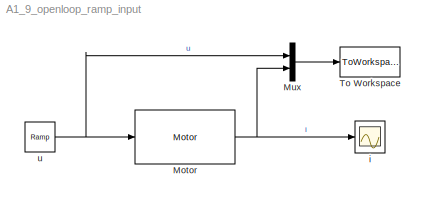
MODEL A1_9_openloop_ramp_input
KIND model
BLOCK [Reference] Motor  REF=DCmotor_library/Motor
  Ports = [1, 1]
  SID = 1
  SourceBlock = DCmotor_library/Motor
  motoridinput = 1
  name_signal = Current
  ts = 10
BLOCK [Mux] Mux
  DisplayOption = bar
  Inputs = 2
  Ports = [2, 1]
  SID = 8
BLOCK [ToWorkspace] To Workspace
  MaxDataPoints = inf
  Ports = [1]
  SID = 6
  SampleTime = -1
  SaveFormat = Structure With Time
  VariableName = simout
BLOCK [Scope] i
  DataFormat = StructureWithTime
  Floating = off
  LimitDataPoints = off
  NumInputPorts = 1
  Ports = [1]
  SID = 3
  SampleTime = 0
  YMax = 0.035
  YMin = -8.67362e-19
BLOCK [Reference] u  REF=simulink/Sources/Ramp
  Ports = [0, 1]
  SID = 5
  SourceBlock = simulink/Sources/Ramp
  SourceType = Ramp
  VectorParams1D = on
  X0 = 0
  slope = 0.5
  start = 0
NET Motor:1 -> Mux:2, i:1
LINE Mux:1 -> To Workspace:1
NET u:1 -> Motor:1, Mux:1
note: NET lines group one-source signal fan-out (src -> all destinations, sorted); 1:1 wires keep LINE
